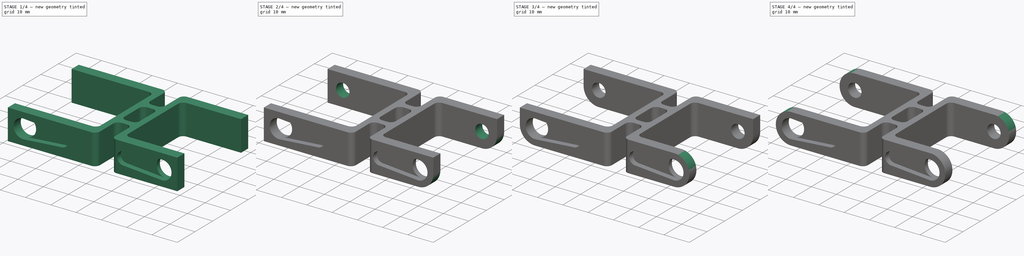
[diagram: build sequence overview — one tinted view per stage of 4, left to right]
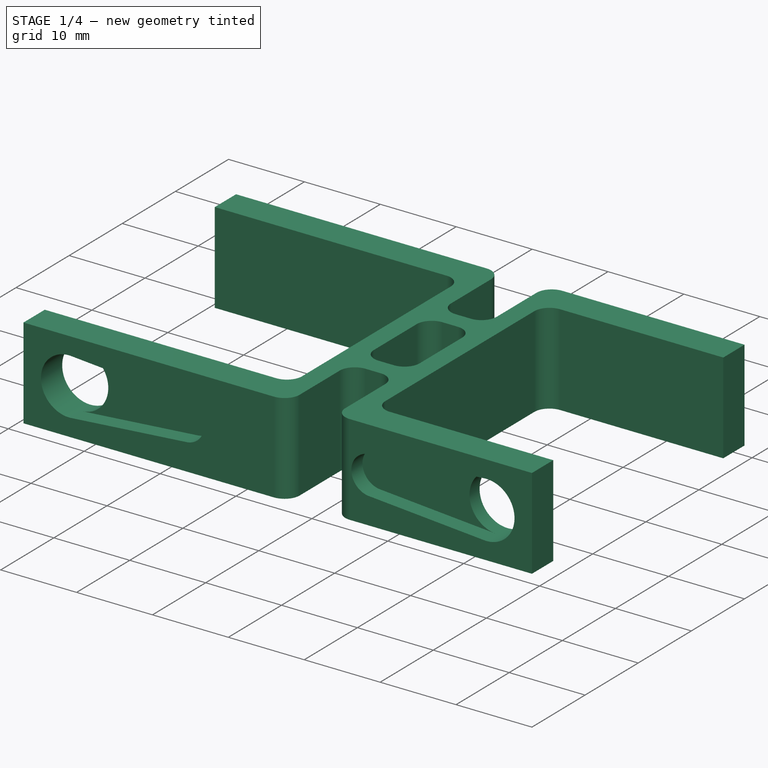
[diagram: stage 1 of 4 — iso view after this stage's code; geometry added in this stage tinted green]
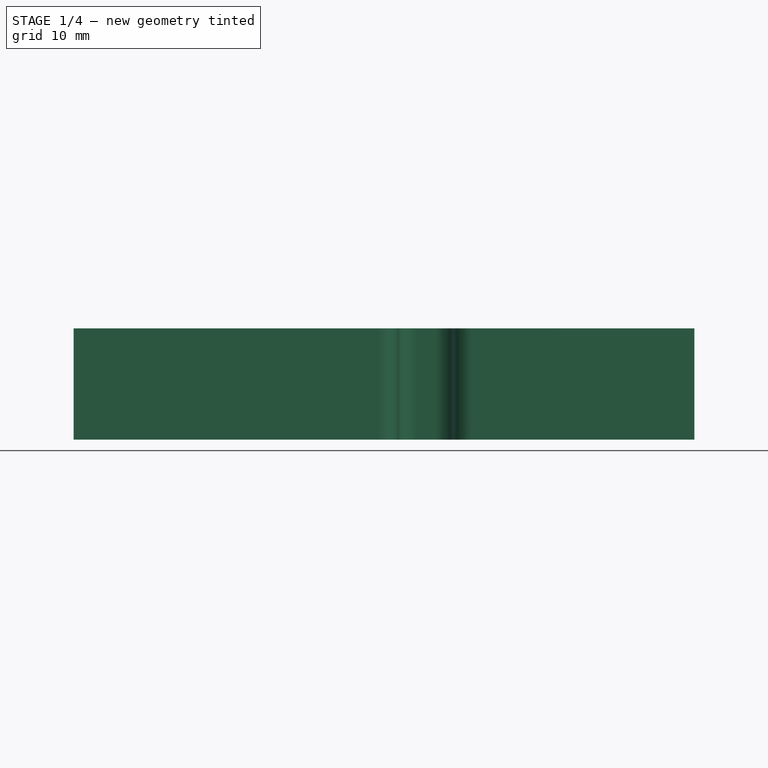
[diagram: stage 1 of 4 — front view after this stage's code; geometry added in this stage tinted green]
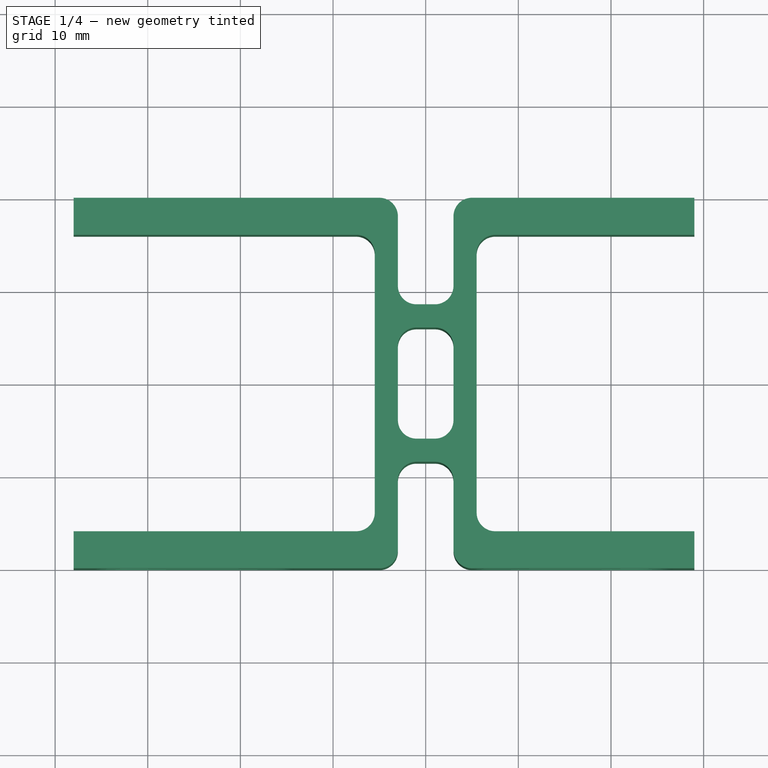
[diagram: stage 1 of 4 — top view after this stage's code; geometry added in this stage tinted green]
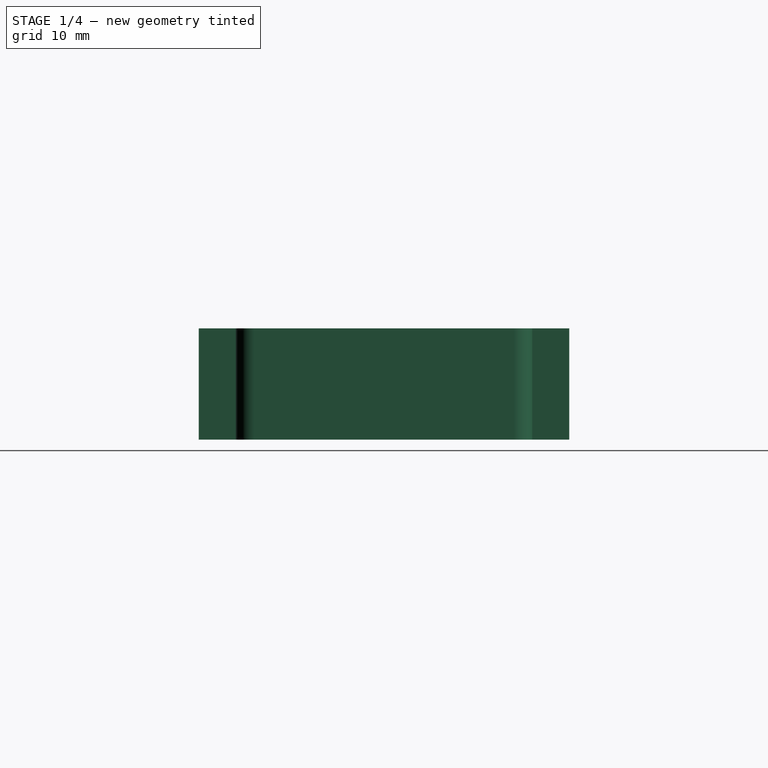
[diagram: stage 1 of 4 — right view after this stage's code; geometry added in this stage tinted green]
FCSTD DOCUMENT  (FreeCAD 0.21R33771 (Git))
Label: бедро
License: All rights reserved
LicenseURL: https://en.wikipedia.org/wiki/All_rights_reserved
objects: PartDesign::Fillet×8, Sketcher::SketchObject×4, PartDesign::Pocket×3, PartDesign::Pad×1, PartDesign::Body×1
note: 29 computed .brp shape members not serialized (recipe doc carries the construction recipe); baked Part::Feature solids carry a one-line shape summary decoded from their .brp

FEATURE [Sketcher::SketchObject] Sketch
  FullyConstrained = true
  MapMode = 5
  Support = -> [XY_Plane]
  sketch-geometry (56):
    g0: LineSegment StartX=3 StartY=-4 StartZ=0 EndX=3 EndY=4 EndZ=0
    g1: LineSegment StartX=1 StartY=6 StartZ=0 EndX=-1 EndY=6 EndZ=0
    g2: LineSegment StartX=-3 StartY=4 StartZ=0 EndX=-3 EndY=-4 EndZ=0
    g3: LineSegment StartX=-1 StartY=-6 StartZ=0 EndX=1 EndY=-6 EndZ=0
    g4: LineSegment StartX=-3 StartY=10.5 StartZ=0 EndX=-3 EndY=18 EndZ=0
    g5: LineSegment StartX=-5 StartY=20 StartZ=0 EndX=-38 EndY=20 EndZ=0
    g6: LineSegment StartX=-38 StartY=20 StartZ=0 EndX=-38 EndY=16 EndZ=0
    g7: LineSegment StartX=-38 StartY=16 StartZ=0 EndX=-7.5 EndY=16 EndZ=0
    g8: LineSegment StartX=-5.5 StartY=14 StartZ=0 EndX=-5.5 EndY=-14 EndZ=0
    g9: LineSegment StartX=-7.5 StartY=-16 StartZ=0 EndX=-38 EndY=-16 EndZ=0
    g10: LineSegment StartX=-38 StartY=-16 StartZ=0 EndX=-38 EndY=-20 EndZ=0
    g11: LineSegment StartX=-38 StartY=-20 StartZ=0 EndX=-5 EndY=-20 EndZ=0
    g12: LineSegment StartX=-3 StartY=-18 StartZ=0 EndX=-3 EndY=-10.5 EndZ=0
    g13: LineSegment StartX=-1 StartY=-8.5 StartZ=0 EndX=1 EndY=-8.5 EndZ=0
    g14: LineSegment StartX=3 StartY=-10.5 StartZ=0 EndX=3 EndY=-18 EndZ=0
    g15: LineSegment StartX=5 StartY=-20 StartZ=0 EndX=29 EndY=-20 EndZ=0
    g16: LineSegment StartX=29 StartY=-20 StartZ=0 EndX=29 EndY=-16 EndZ=0
    g17: LineSegment StartX=29 StartY=-16 StartZ=0 EndX=7.5 EndY=-16 EndZ=0
    g18: LineSegment StartX=5.5 StartY=-14 StartZ=0 EndX=5.5 EndY=14 EndZ=0
    g19: LineSegment StartX=7.5 StartY=16 StartZ=0 EndX=29 EndY=16 EndZ=0
    g20: LineSegment StartX=29 StartY=16 StartZ=0 EndX=29 EndY=20 EndZ=0
    g21: LineSegment StartX=29 StartY=20 StartZ=0 EndX=5 EndY=20 EndZ=0
    g22: LineSegment StartX=3 StartY=18 StartZ=0 EndX=3 EndY=10.5 EndZ=0
    g23: LineSegment StartX=1 StartY=8.5 StartZ=0 EndX=-1 EndY=8.5 EndZ=0
    g24: ArcOfCircle CenterX=-7.5 CenterY=14 CenterZ=0 NormalX=0 NormalY=0 NormalZ=1 AngleXU=0 Radius=2 StartAngle=0 EndAngle=1.5708
    g25: GeomPoint X=-5.5 Y=16 Z=0
    g26: ArcOfCircle CenterX=-5 CenterY=18 CenterZ=0 NormalX=0 NormalY=0 NormalZ=1 AngleXU=0 Radius=2 StartAngle=0 EndAngle=1.5708
    g27: GeomPoint X=-3 Y=20 Z=0
    g28: ArcOfCircle CenterX=5 CenterY=18 CenterZ=0 NormalX=0 NormalY=0 NormalZ=1 AngleXU=0 Radius=2 StartAngle=1.5708 EndAngle=3.14159
    g29: GeomPoint X=3 Y=20 Z=0
    g30: ArcOfCircle CenterX=7.5 CenterY=14 CenterZ=0 NormalX=0 NormalY=0 NormalZ=1 AngleXU=0 Radius=2 StartAngle=1.5708 EndAngle=3.14159
    g31: GeomPoint X=5.5 Y=16 Z=0
    g32: ArcOfCircle CenterX=1 CenterY=10.5 CenterZ=0 NormalX=0 NormalY=0 NormalZ=1 AngleXU=0 Radius=2 StartAngle=4.71239 EndAngle=6.28319
    g33: GeomPoint X=3 Y=8.5 Z=0
    g34: ArcOfCircle CenterX=-1 CenterY=10.5 CenterZ=0 NormalX=0 NormalY=0 NormalZ=1 AngleXU=0 Radius=2 StartAngle=3.14159 EndAngle=4.71239
    g35: GeomPoint X=-3 Y=8.5 Z=0
    g36: ArcOfCircle CenterX=-1 CenterY=4 CenterZ=0 NormalX=0 NormalY=0 NormalZ=1 AngleXU=0 Radius=2 StartAngle=1.5708 EndAngle=3.14159
    g37: GeomPoint X=-3 Y=6 Z=0
    g38: ArcOfCircle CenterX=1 CenterY=4 CenterZ=0 NormalX=0 NormalY=0 NormalZ=1 AngleXU=0 Radius=2 StartAngle=0 EndAngle=1.5708
    g39: GeomPoint X=3 Y=6 Z=0
    g40: ArcOfCircle CenterX=-1 CenterY=-4 CenterZ=0 NormalX=0 NormalY=0 NormalZ=1 AngleXU=0 Radius=2 StartAngle=3.14159 EndAngle=4.71239
    g41: GeomPoint X=-3 Y=-6 Z=0
    g42: ArcOfCircle CenterX=1 CenterY=-4 CenterZ=0 NormalX=0 NormalY=0 NormalZ=1 AngleXU=0 Radius=2 StartAngle=4.71239 EndAngle=6.28319
    g43: GeomPoint X=3 Y=-6 Z=0
    g44: ArcOfCircle CenterX=-1 CenterY=-10.5 CenterZ=0 NormalX=0 NormalY=0 NormalZ=1 AngleXU=0 Radius=2 StartAngle=1.5708 EndAngle=3.14159
    g45: GeomPoint X=-3 Y=-8.5 Z=0
    g46: ArcOfCircle CenterX=1 CenterY=-10.5 CenterZ=0 NormalX=0 NormalY=0 NormalZ=1 AngleXU=0 Radius=2 StartAngle=0 EndAngle=1.5708
    g47: GeomPoint X=3 Y=-8.5 Z=0
    g48: ArcOfCircle CenterX=-7.5 CenterY=-14 CenterZ=0 NormalX=0 NormalY=0 NormalZ=1 AngleXU=0 Radius=2 StartAngle=4.71239 EndAngle=6.28319
    g49: GeomPoint X=-5.5 Y=-16 Z=0
    g50: ArcOfCircle CenterX=-5 CenterY=-18 CenterZ=0 NormalX=0 NormalY=0 NormalZ=1 AngleXU=0 Radius=2 StartAngle=4.71239 EndAngle=6.28319
    g51: GeomPoint X=-3 Y=-20 Z=0
    g52: ArcOfCircle CenterX=5 CenterY=-18 CenterZ=0 NormalX=0 NormalY=0 NormalZ=1 AngleXU=0 Radius=2 StartAngle=3.14159 EndAngle=4.71239
    g53: GeomPoint X=3 Y=-20 Z=0
    g54: ArcOfCircle CenterX=7.5 CenterY=-14 CenterZ=0 NormalX=0 NormalY=0 NormalZ=1 AngleXU=0 Radius=2 StartAngle=3.14159 EndAngle=4.71239
    g55: GeomPoint X=5.5 Y=-16 Z=0
  constraints (136):
    c: Horizontal(g1)
    c: Horizontal(g3)
    c: Vertical(g0)
    c: Vertical(g2)
    c: Vertical(g4)
    c: Horizontal(g5)
    c: Coincident(g5,g6)
    c: Vertical(g6)
    c: Coincident(g6,g7)
    c: Horizontal(g7)
    c: Vertical(g8)
    c: Horizontal(g9)
    c: Coincident(g9,g10)
    c: Vertical(g10)
    c: Coincident(g10,g11)
    c: Horizontal(g11)
    c: Vertical(g12)
    c: Horizontal(g13)
    c: Vertical(g14)
    c: Horizontal(g15)
    c: Coincident(g15,g16)
    c: Vertical(g16)
    c: Coincident(g16,g17)
    c: Horizontal(g17)
    c: Vertical(g18)
    c: Horizontal(g19)
    c: Coincident(g19,g20)
    c: Vertical(g20)
    c: Coincident(g20,g21)
    c: Horizontal(g21)
    c: Vertical(g22)
    c: Horizontal(g23)
    c: PointOnObject(g25,g7)
    c: PointOnObject(g25,g8)
    c: Tangent(g7,g24) = 1.5708
    c: Tangent(g8,g24) = 1.5708
    c: PointOnObject(g27,g5)
    c: PointOnObject(g27,g4)
    c: Tangent(g5,g26) = -1.5708
    c: Tangent(g4,g26) = -1.5708
    c: PointOnObject(g29,g21)
    c: PointOnObject(g29,g22)
    c: Tangent(g21,g28) = -1.5708
    c: Tangent(g22,g28) = -1.5708
    c: PointOnObject(g31,g19)
    c: PointOnObject(g31,g18)
    c: Tangent(g19,g30) = 1.5708
    c: Tangent(g18,g30) = 1.5708
    c: PointOnObject(g33,g22)
    c: PointOnObject(g33,g23)
    c: Tangent(g22,g32) = 1.5708
    c: Tangent(g23,g32) = 1.5708
    c: PointOnObject(g35,g4)
    c: PointOnObject(g35,g23)
    c: Tangent(g4,g34) = 1.5708
    c: Tangent(g23,g34) = 1.5708
    c: PointOnObject(g37,g1)
    c: PointOnObject(g37,g2)
    c: Tangent(g1,g36) = -1.5708
    c: Tangent(g2,g36) = -1.5708
    c: PointOnObject(g39,g1)
    c: PointOnObject(g39,g0)
    c: Tangent(g1,g38) = -1.5708
    c: Tangent(g0,g38) = -1.5708
    c: PointOnObject(g41,g2)
    c: PointOnObject(g41,g3)
    c: Tangent(g2,g40) = -1.5708
    c: Tangent(g3,g40) = -1.5708
    c: PointOnObject(g43,g0)
    c: PointOnObject(g43,g3)
    c: Tangent(g0,g42) = -1.5708
    c: Tangent(g3,g42) = -1.5708
    c: PointOnObject(g45,g13)
    c: PointOnObject(g45,g12)
    c: Tangent(g13,g44) = 1.5708
    c: Tangent(g12,g44) = 1.5708
    c: PointOnObject(g47,g13)
    c: PointOnObject(g47,g14)
    c: Tangent(g13,g46) = 1.5708
    c: Tangent(g14,g46) = 1.5708
    c: PointOnObject(g49,g8)
    c: PointOnObject(g49,g9)
    c: Tangent(g8,g48) = 1.5708
    c: Tangent(g9,g48) = 1.5708
    c: PointOnObject(g51,g12)
    c: PointOnObject(g51,g11)
    c: Tangent(g12,g50) = -1.5708
    c: Tangent(g11,g50) = -1.5708
    c: PointOnObject(g53,g14)
    c: PointOnObject(g53,g15)
    c: Tangent(g14,g52) = -1.5708
    c: Tangent(g15,g52) = -1.5708
    c: PointOnObject(g55,g17)
    c: PointOnObject(g55,g18)
    c: Tangent(g17,g54) = 1.5708
    c: Tangent(g18,g54) = 1.5708
    c: Equal(g50,g48)
    c: Equal(g48,g52)
    c: Equal(g52,g54)
    c: Equal(g54,g46)
    c: Equal(g46,g44)
    c: Equal(g44,g40)
    c: Equal(g40,g42)
    c: Equal(g42,g38)
    c: Equal(g38,g36)
    c: Equal(g36,g34)
    c: Equal(g34,g32)
    c: Equal(g32,g28)
    c: Equal(g28,g30)
    c: Equal(g30,g26)
    c: Equal(g26,g24)
    c: Radius(g24) = 2
    c: DistanceX(g2,g-1) = 3
    c: DistanceX(g-1,g0) = 3
    c: DistanceX(g-1,g14) = 3
    c: DistanceX(g12,g-1) = 3
    c: DistanceX(g-1,g22) = 3
    c: DistanceX(g4,g-1) = 3
    c: DistanceX(g-1,g18) = 5.5
    c: DistanceX(g8,g-1) = 5.5
    c: DistanceX(g-1,g20) = 29
    c: Distance(g20) = 4
    c: Equal(g16,g10)
    c: Equal(g10,g6)
    c: Equal(g6,g20)
    c: DistanceY(g16,g19) = 32
    c: DistanceY(g9,g6) = 32
    c: DistanceY(g-1,g19) = 16
    c: DistanceY(g-1,g6) = 16
    c: DistanceX(g10,g12) = 35
    c: DistanceX(g5,g4) = 35
    c: DistanceY(g1) = 6
    c: DistanceY(g3,g-1) = 6
    c: DistanceY(g13,g-1) = 8.5
    c: DistanceY(g-1,g23) = 8.5
    c: DistanceX(g14,g15) = 26
FEATURE [PartDesign::Pad] Pad
  Direction = (0,0,1)
  Length = 12
  Length2 = 10
  Profile = -> Sketch
  ReferenceAxis = -> Sketch [N_Axis]
  Type = 0
FEATURE [Sketcher::SketchObject] Sketch001
  FullyConstrained = true
  MapMode = 5
  Placement = pos=(0,-20,0) rot=(1,0,0;1.5708rad)
  Support = -> [Pad]
  sketch-geometry (2):
    g0: Circle CenterX=-32 CenterY=6 CenterZ=0 NormalX=0 NormalY=0 NormalZ=1 AngleXU=0 Radius=3.7
    g1: Circle CenterX=23 CenterY=6 CenterZ=0 NormalX=0 NormalY=0 NormalZ=1 AngleXU=0 Radius=3.7
  constraints (6):
    c: Diameter(g0) = 7.4
    c: DistanceY(g-1,g0) = 6
    c: DistanceX(g0,g-1) = 32
    c: Equal(g1,g0)
    c: DistanceY(g-1,g1) = 6
    c: DistanceX(g-1,g1) = 23
FEATURE [PartDesign::Pocket] Pocket
  BaseFeature = -> Pad
  Direction = (0,1,-2e-16)
  Length = 5
  Length2 = 5
  Profile = -> Sketch001
  ReferenceAxis = -> Sketch001 [N_Axis]
  Type = 0
FEATURE [Sketcher::SketchObject] Sketch002
  FullyConstrained = true
  MapMode = 5
  Placement = pos=(0,-20,0) rot=(1,0,0;1.5708rad)
  Support = -> [Pocket]
  sketch-geometry (8):
    g0: ArcOfCircle CenterX=-32 CenterY=6 CenterZ=0 NormalX=0 NormalY=0 NormalZ=1 AngleXU=0 Radius=3.7 StartAngle=1.49228 EndAngle=4.7909
    g1: ArcOfCircle CenterX=-16.7 CenterY=6 CenterZ=0 NormalX=0 NormalY=0 NormalZ=1 AngleXU=0 Radius=2.5 StartAngle=4.7909 EndAngle=7.77547
    g2: LineSegment StartX=-31.7098 StartY=2.3114 StartZ=0 EndX=-16.5039 EndY=3.5077 EndZ=0
    g3: LineSegment StartX=-16.5039 StartY=8.4923 StartZ=0 EndX=-31.7098 EndY=9.6886 EndZ=0
    g4: ArcOfCircle CenterX=23 CenterY=6 CenterZ=0 NormalX=0 NormalY=0 NormalZ=1 AngleXU=0 Radius=3.7 StartAngle=4.63388 EndAngle=7.93249
    g5: ArcOfCircle CenterX=7.7 CenterY=6 CenterZ=0 NormalX=0 NormalY=0 NormalZ=1 AngleXU=0 Radius=2.5 StartAngle=1.64931 EndAngle=4.63388
    g6: LineSegment StartX=22.7098 StartY=9.6886 StartZ=0 EndX=7.50392 EndY=8.4923 EndZ=0
    g7: LineSegment StartX=7.50392 StartY=3.5077 StartZ=0 EndX=22.7098 EndY=2.3114 EndZ=0
  constraints (20):
    c: Tangent(g0,g2) = -1.5708
    c: Tangent(g2,g1) = -1.5708
    c: Tangent(g1,g3) = -1.5708
    c: Tangent(g3,g0) = -1.5708
    c: Diameter(g0) = 7.4
    c: Diameter(g1) = 5
    c: DistanceY(g-1,g1) = 6
    c: DistanceX(g0,g-1) = 32
    c: DistanceY(g-1,g0) = 6
    c: DistanceX(g0,g1) = 15.3
    c: Tangent(g4,g6) = -1.5708
    c: Tangent(g6,g5) = -1.5708
    c: Tangent(g5,g7) = -1.5708
    c: Tangent(g7,g4) = -1.5708
    c: DistanceY(g-1,g4) = 6
    c: DistanceY(g-1,g5) = 6
    c: DistanceX(g-1,g4) = 23
    c: Diameter(g4) = 7.4
    c: DistanceX(g5,g4) = 15.3
    c: Diameter(g5) = 5
FEATURE [PartDesign::Pocket] Pocket001
  BaseFeature = -> Pocket
  Direction = (0,1,-2e-16)
  Length = 2.1
  Length2 = 5
  Profile = -> Sketch002
  ReferenceAxis = -> Sketch002 [N_Axis]
  Type = 0
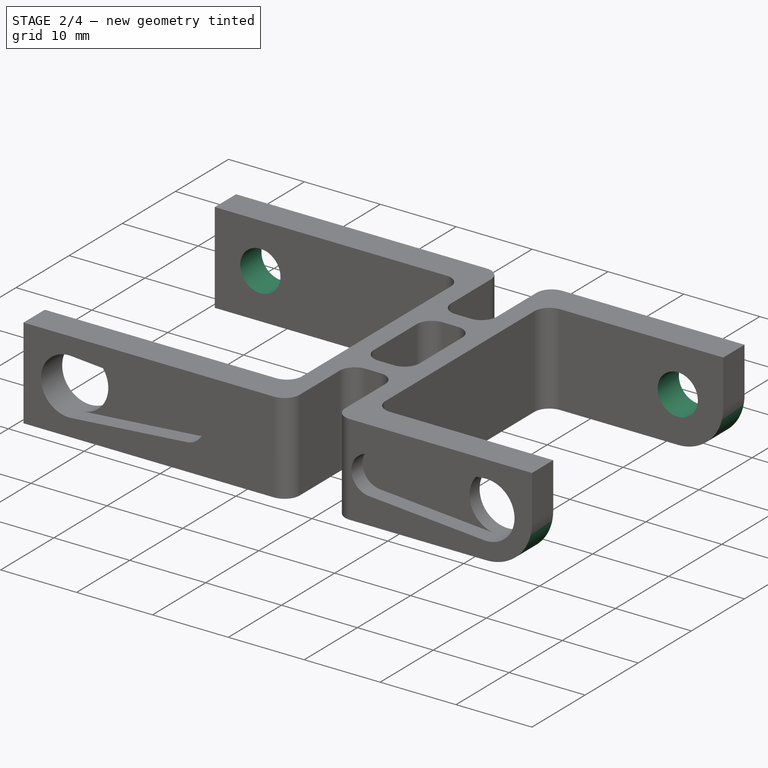
[diagram: stage 2 of 4 — iso view after this stage's code; geometry added in this stage tinted green]
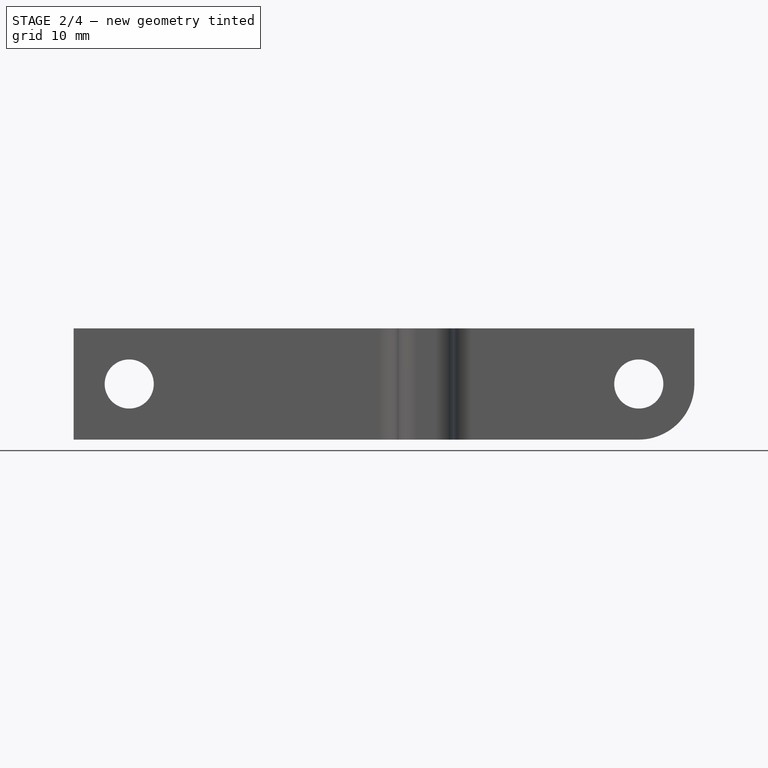
[diagram: stage 2 of 4 — front view after this stage's code; geometry added in this stage tinted green]
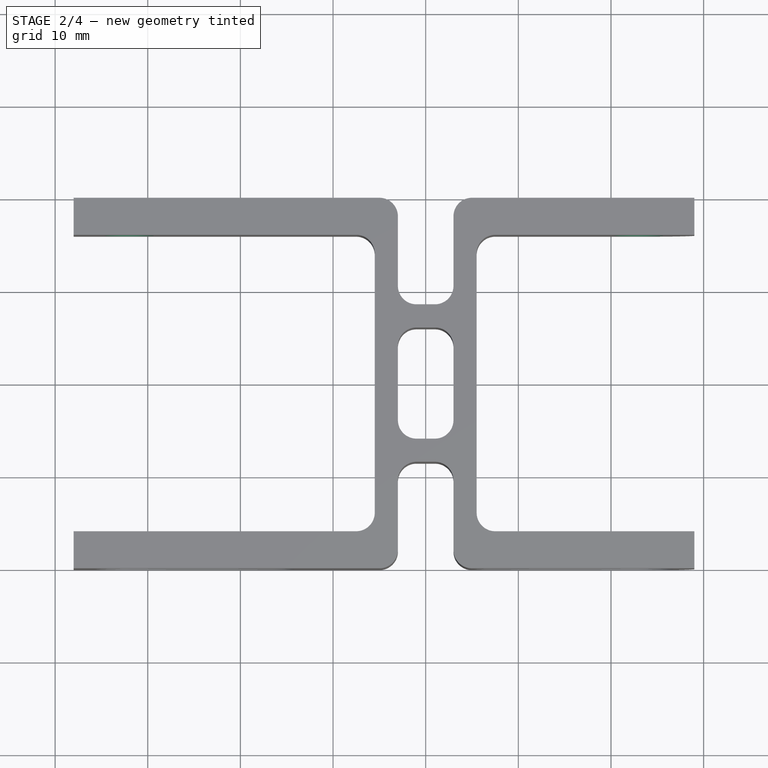
[diagram: stage 2 of 4 — top view after this stage's code; geometry added in this stage tinted green]
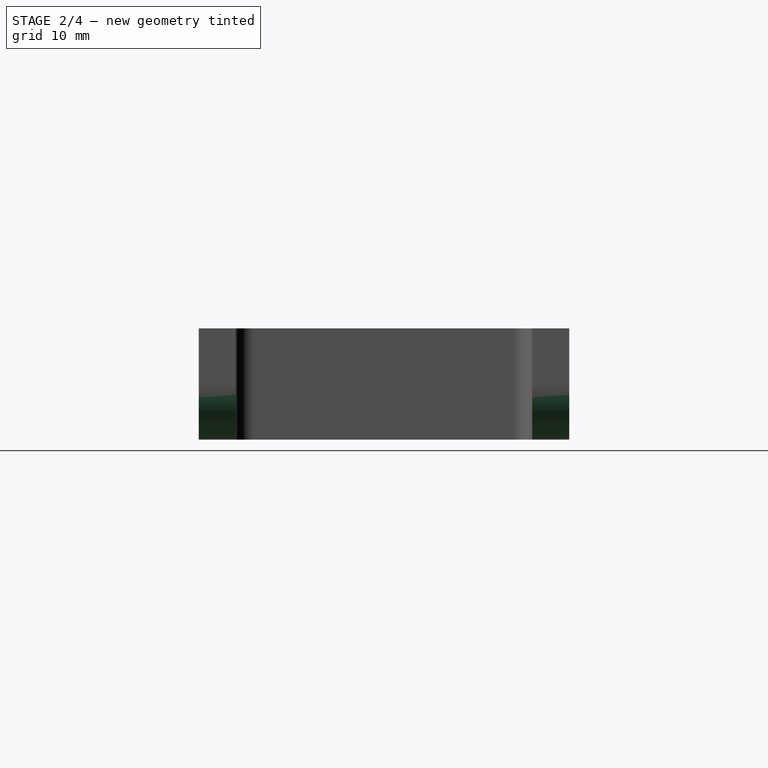
[diagram: stage 2 of 4 — right view after this stage's code; geometry added in this stage tinted green]
FEATURE [Sketcher::SketchObject] Sketch003
  FullyConstrained = true
  MapMode = 5
  Placement = pos=(0,20,0) rot=(0,0.707107,0.707107;3.14159rad)
  Support = -> [Pocket001]
  sketch-geometry (2):
    g0: Circle CenterX=-23 CenterY=6 CenterZ=0 NormalX=0 NormalY=0 NormalZ=1 AngleXU=0 Radius=2.65
    g1: Circle CenterX=32 CenterY=6 CenterZ=0 NormalX=0 NormalY=0 NormalZ=1 AngleXU=0 Radius=2.65
  constraints (6):
    c: DistanceY(g-1,g0) = 6
    c: DistanceY(g-1,g1) = 6
    c: DistanceX(g-1,g1) = 32
    c: DistanceX(g0,g-1) = 23
    c: Diameter(g0) = 5.3
    c: Diameter(g1) = 5.3
FEATURE [PartDesign::Pocket] Pocket002
  BaseFeature = -> Pocket001
  Direction = (0,-1,2e-16)
  Length = 5
  Length2 = 5
  Profile = -> Sketch003
  ReferenceAxis = -> Sketch003 [N_Axis]
  Type = 0
FEATURE [PartDesign::Fillet] Fillet
  Base = -> Pocket002 [Edge34]
  BaseFeature = -> Pocket002
  Radius = 6
  SupportTransform = false
  UseAllEdges = false
FEATURE [PartDesign::Fillet] Fillet001
  Base = -> Fillet [Edge11]
  BaseFeature = -> Fillet
  Radius = 6
  SupportTransform = false
  UseAllEdges = false
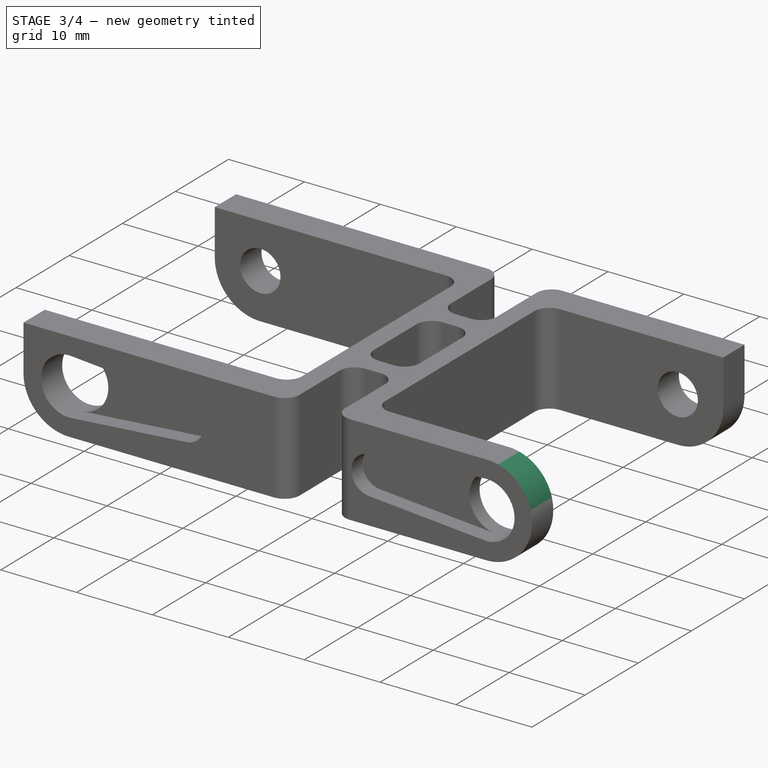
[diagram: stage 3 of 4 — iso view after this stage's code; geometry added in this stage tinted green]
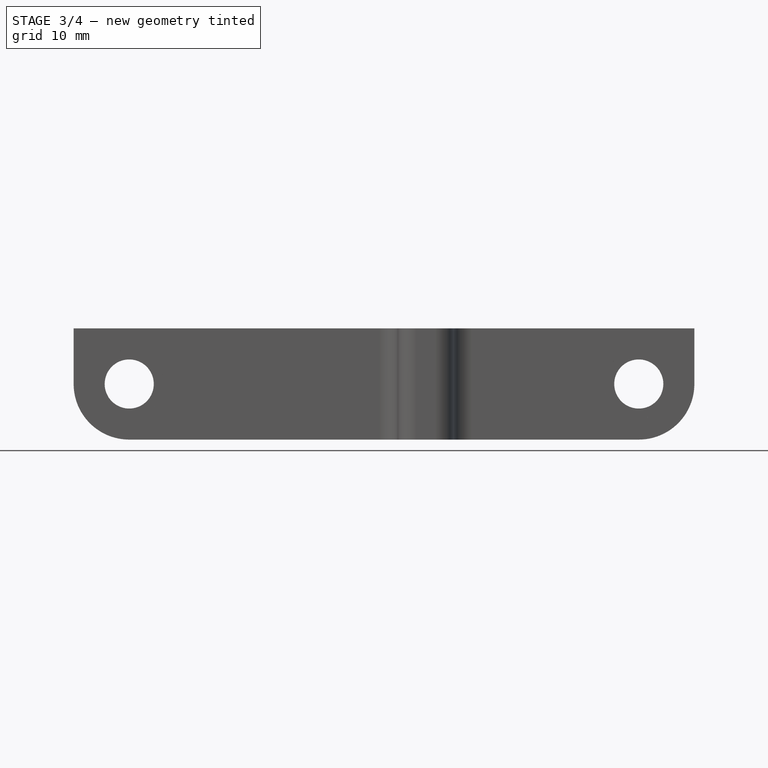
[diagram: stage 3 of 4 — front view after this stage's code; geometry added in this stage tinted green]
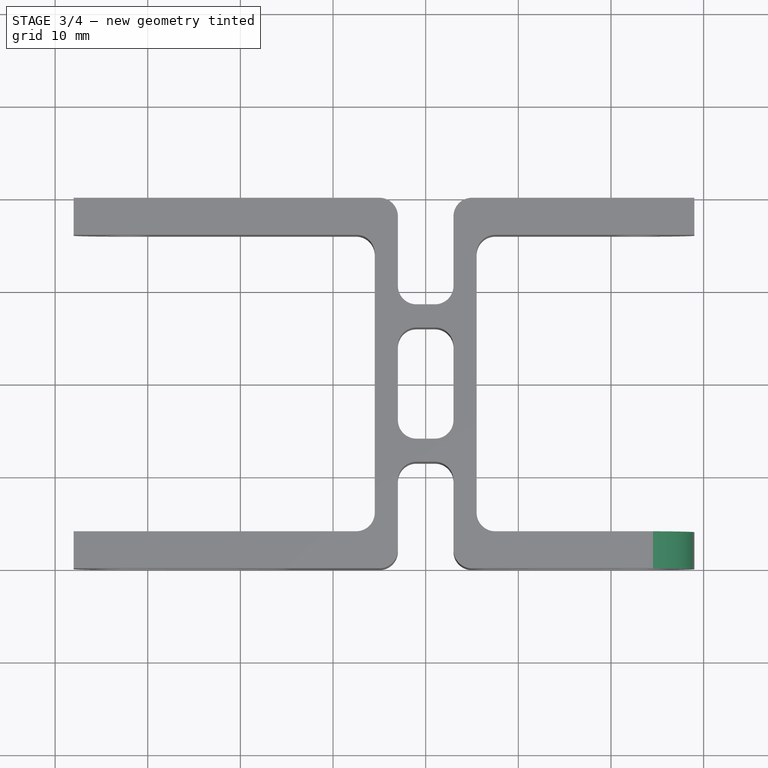
[diagram: stage 3 of 4 — top view after this stage's code; geometry added in this stage tinted green]
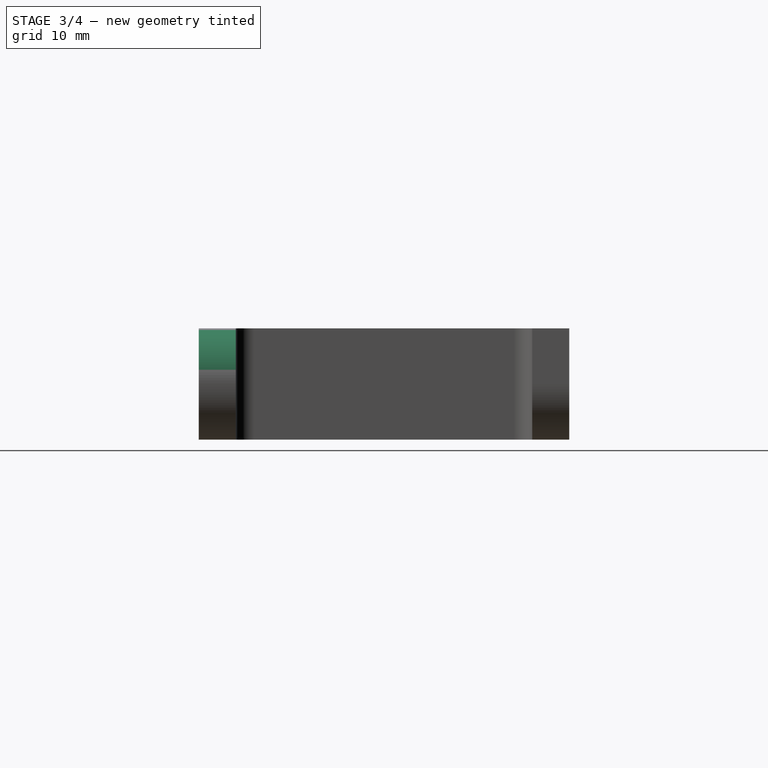
[diagram: stage 3 of 4 — right view after this stage's code; geometry added in this stage tinted green]
FEATURE [PartDesign::Fillet] Fillet002
  Base = -> Fillet001 [Edge22]
  BaseFeature = -> Fillet001
  Radius = 6
  SupportTransform = false
  UseAllEdges = false
FEATURE [PartDesign::Fillet] Fillet003
  Base = -> Fillet002 [Edge14]
  BaseFeature = -> Fillet002
  Radius = 6
  SupportTransform = false
  UseAllEdges = false
FEATURE [PartDesign::Fillet] Fillet004
  Base = -> Fillet003 [Edge146]
  BaseFeature = -> Fillet003
  Radius = 5.9
  SupportTransform = false
  UseAllEdges = false
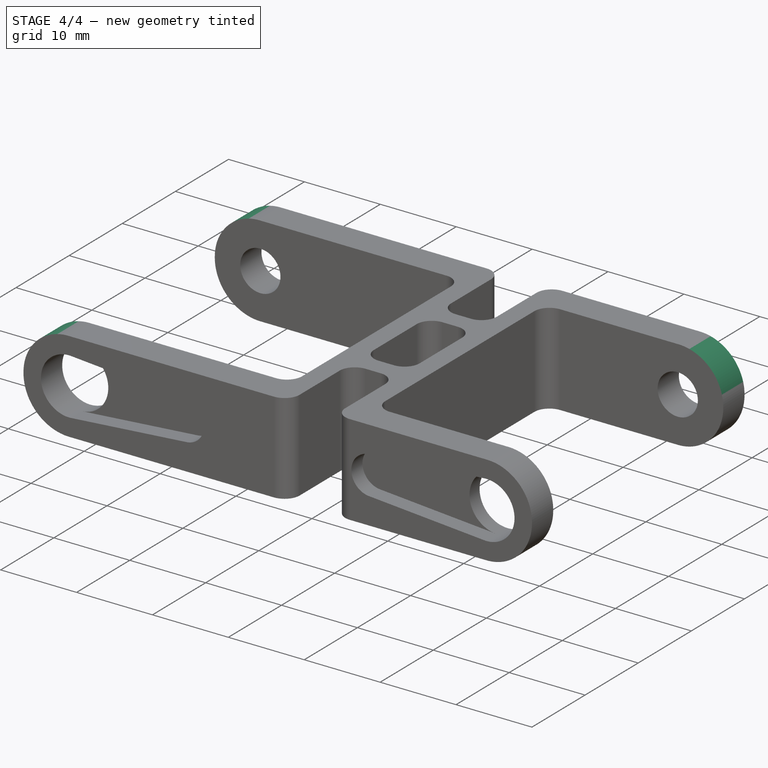
[diagram: stage 4 of 4 — iso view after this stage's code; geometry added in this stage tinted green]
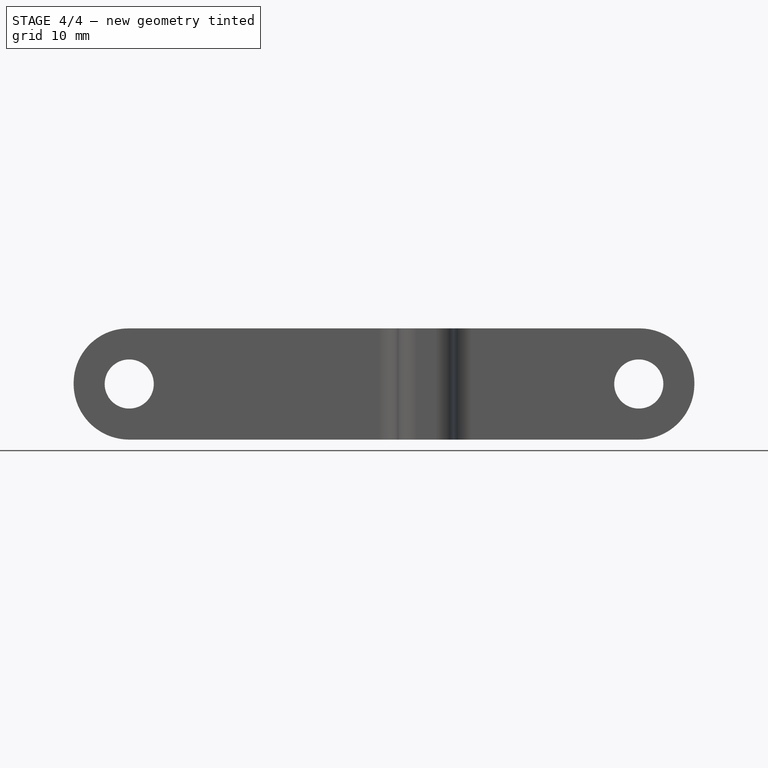
[diagram: stage 4 of 4 — front view after this stage's code; geometry added in this stage tinted green]
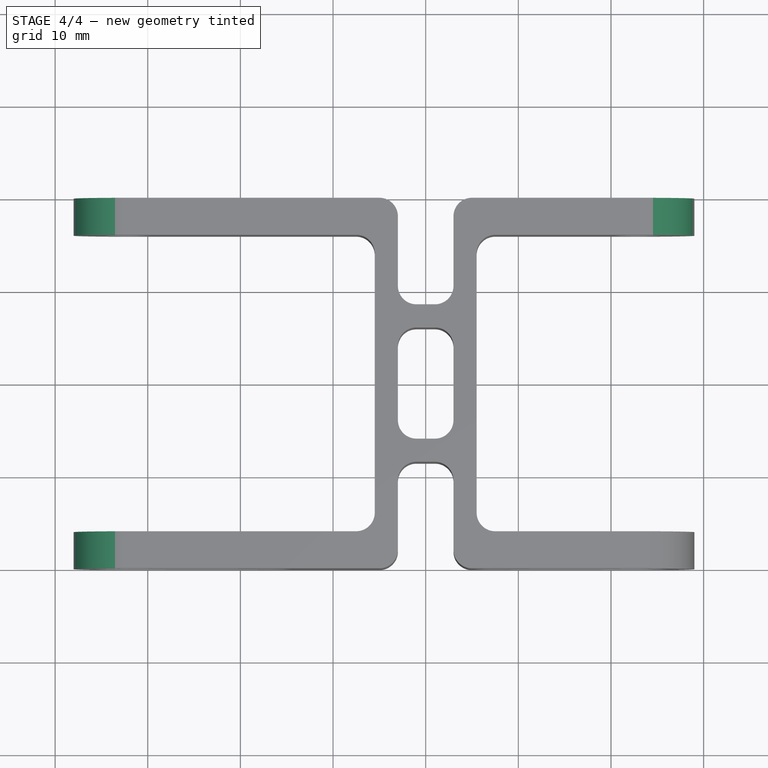
[diagram: stage 4 of 4 — top view after this stage's code; geometry added in this stage tinted green]
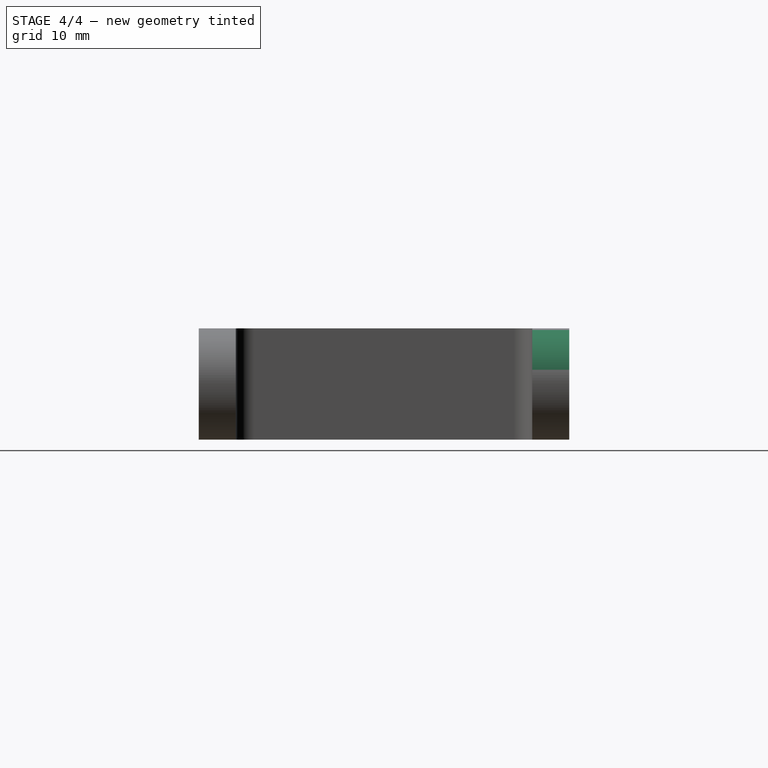
[diagram: stage 4 of 4 — right view after this stage's code; geometry added in this stage tinted green]
FEATURE [PartDesign::Fillet] Fillet005
  Base = -> Fillet004 [Edge30]
  BaseFeature = -> Fillet004
  Radius = 5.9
  SupportTransform = false
  UseAllEdges = false
FEATURE [PartDesign::Fillet] Fillet006
  Base = -> Fillet005 [Edge22]
  BaseFeature = -> Fillet005
  Radius = 5.9
  SupportTransform = false
  UseAllEdges = false
FEATURE [PartDesign::Fillet] Fillet007
  Base = -> Fillet006 [Edge14]
  BaseFeature = -> Fillet006
  Radius = 5.9
  SupportTransform = false
  UseAllEdges = false
FEATURE [PartDesign::Body] Body
  Group = -> [Sketch,Pad,Sketch001,Pocket,Sketch002,Pocket001,Sketch003,Pocket002,Fillet,Fillet001,Fillet002,Fillet003,Fillet004,Fillet005,Fillet006,Fillet007]
  Origin = -> Origin
  Tip = -> Fillet007
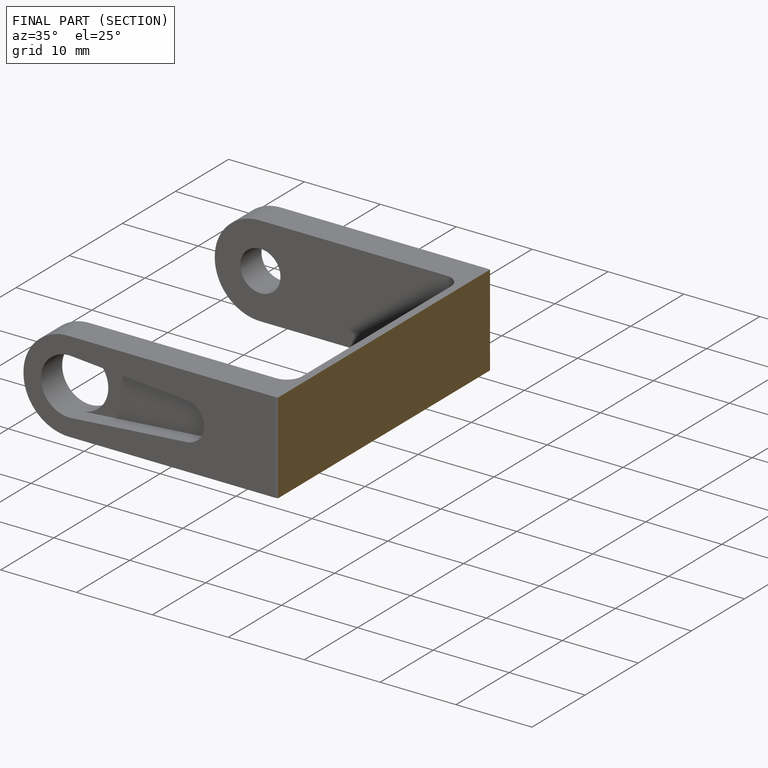
[diagram: finished part — half-section view (interior)]
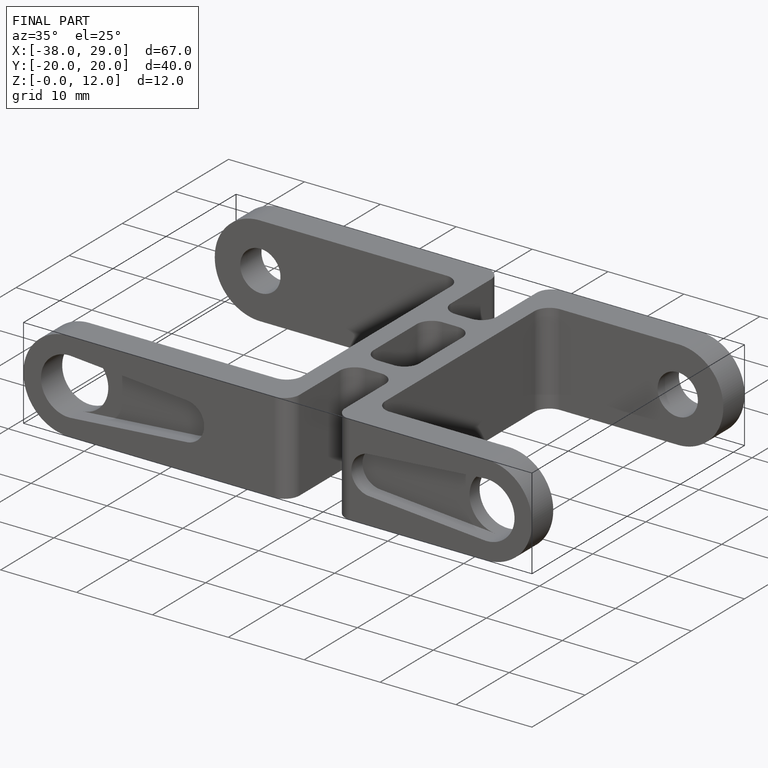
[diagram: finished part — iso view with bounding-box wireframe]
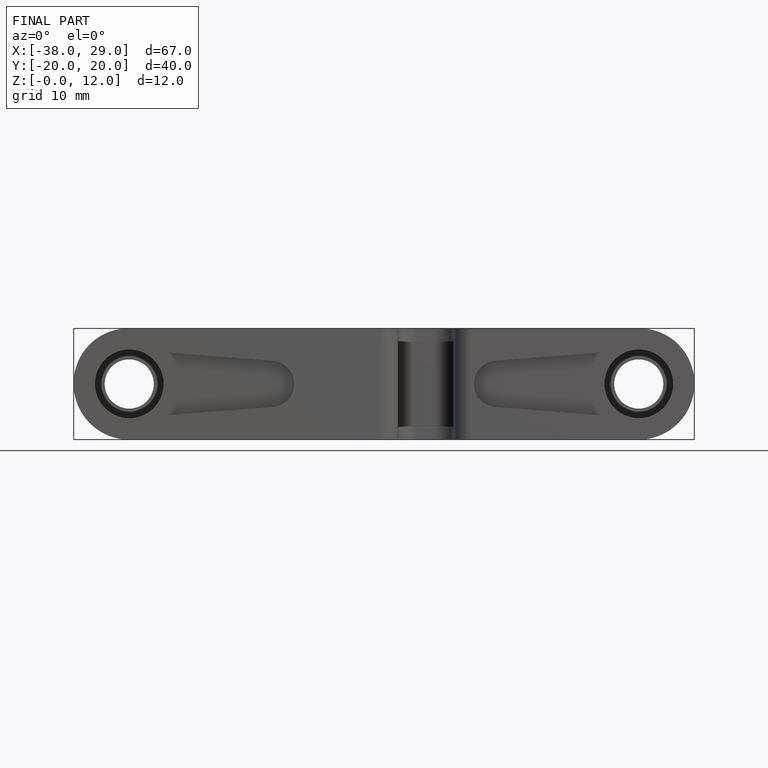
[diagram: finished part — front view with bounding-box wireframe]
